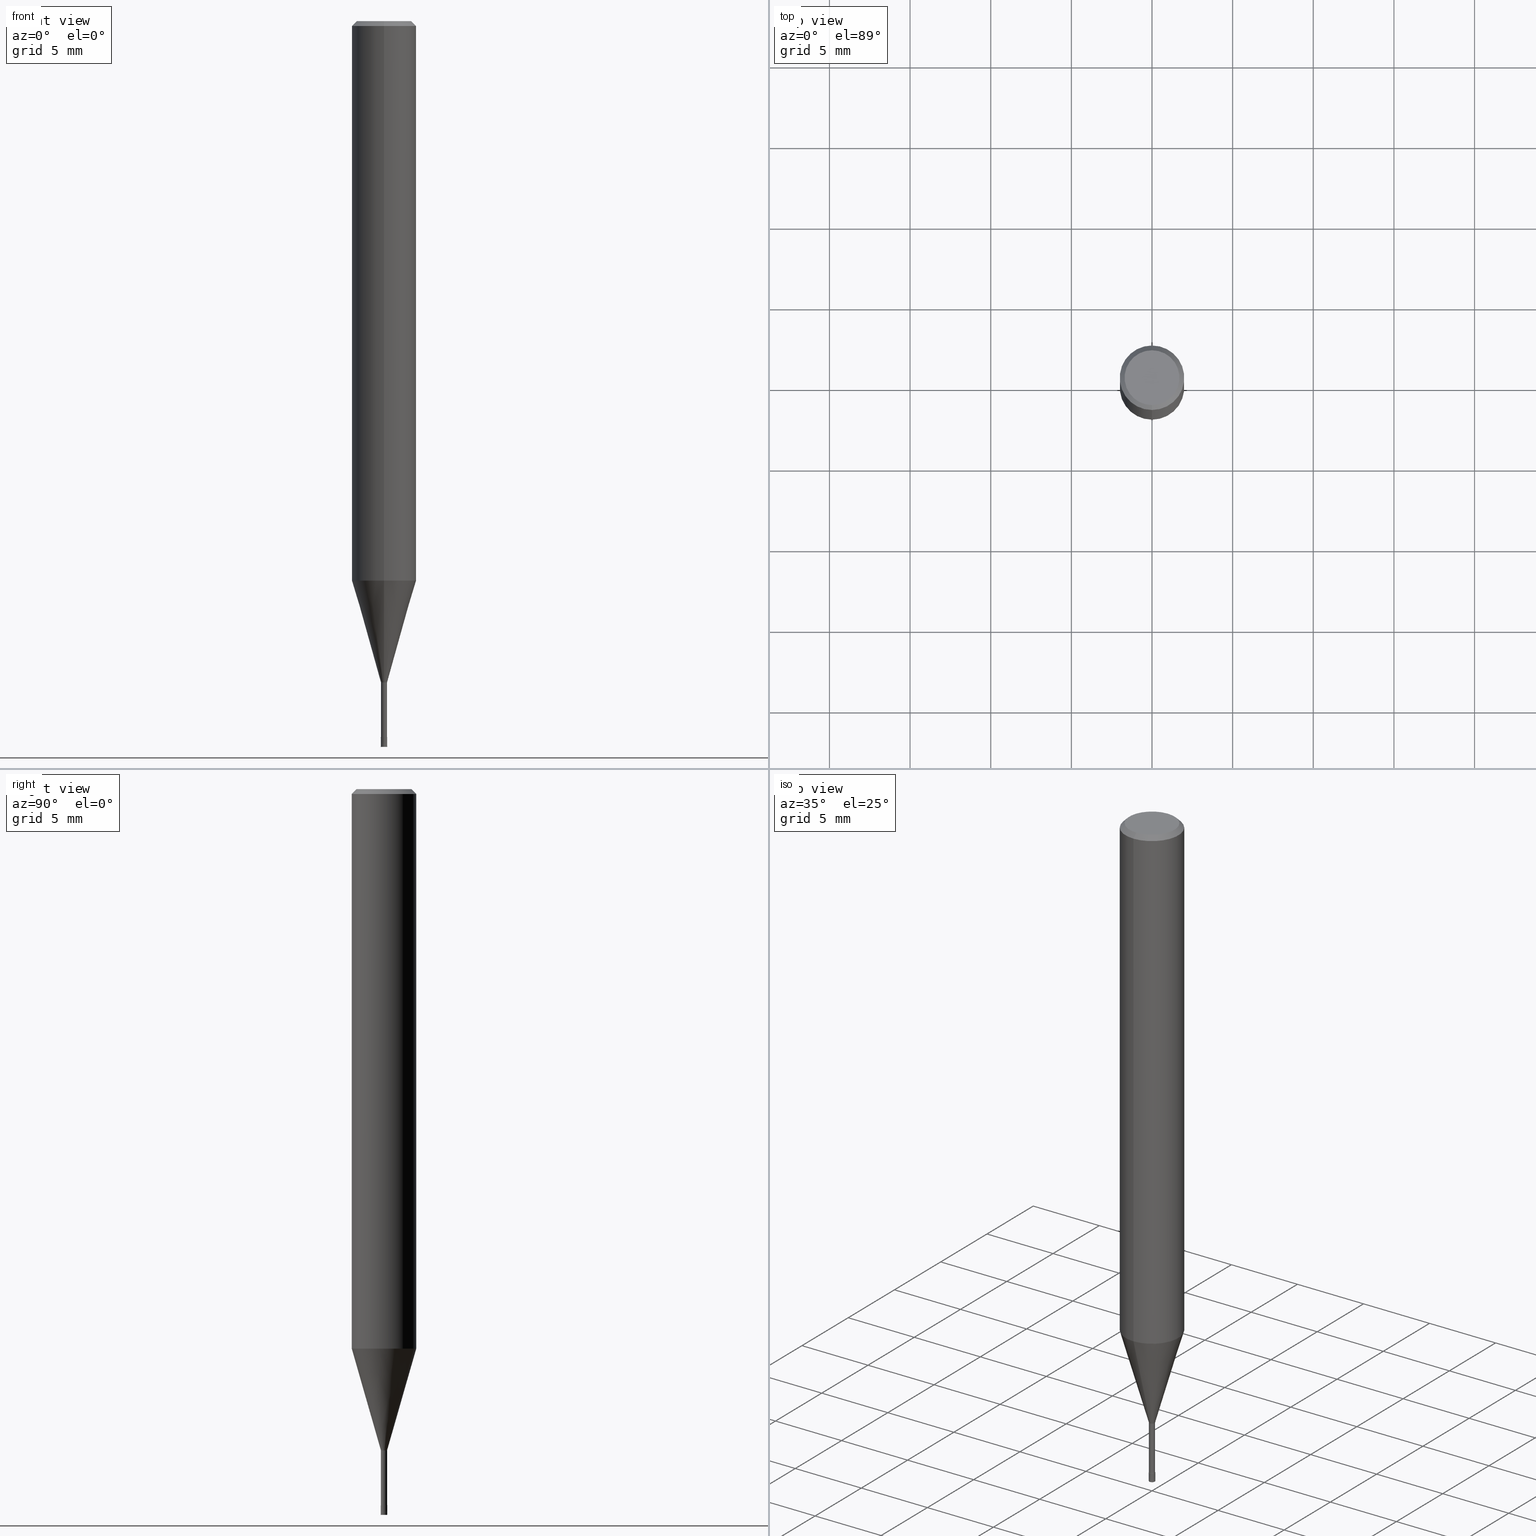
[diagram: canonical four-view strip — front | top / right | iso, engineering-drawing reading convention]
A machine part, canonical four-view strip (front | top / right | iso — engineering-drawing reading convention). The complete STEP part file that produces these views, byte-faithful:
ISO-10303-21;
HEADER;
FILE_DESCRIPTION(('no description'),'unknown implementation level');
FILE_NAME('HLS2004-040-Huellk.stp','  ',('CIMSOURCE GmbH'),('CADClick - KiM GmbH - www.kimweb.de'),'unknown preprocess','ACIS','unknown authorization');
FILE_SCHEMA(('automotive_design'));
ENDSEC;
DATA;
#1=MECHANICAL_DESIGN_GEOMETRIC_PRESENTATION_REPRESENTATION(' ',(#14,#15,#16,#17,#18,#19,#20,#21,#22,#23,#24,#25,#26,#27,#28,#29,#30,#31,#32,#33,#34,#35,#36,#37,#38,#39,#40,#41,#42,#43,#44,#45,#46,#47,#48,#49,#50,#51,#52,#53,#54,#55,#56,#57,#58,#59,#60,#61,#62,#63,#64,#65,#66,#67,#68,#69,#70,#71,#72),#10);
#2=PRODUCT_DEFINITION_CONTEXT('',#73,'design');
#3=APPLICATION_PROTOCOL_DEFINITION('INTERNATIONAL STANDARD','automotive_design',1994,#73);
#4=PRODUCT_CATEGORY_RELATIONSHIP('NONE','NONE',#74,#75);
#5=SHAPE_DEFINITION_REPRESENTATION(#76,#77);
#6=PRODUCT_DEFINITION_CONTEXT('',#78,'design');
#7=APPLICATION_PROTOCOL_DEFINITION('INTERNATIONAL STANDARD','automotive_design',1994,#78);
#8=PRODUCT_CATEGORY_RELATIONSHIP('NONE','NONE',#79,#80);
#9=SHAPE_DEFINITION_REPRESENTATION(#81,#82);
#10= (GEOMETRIC_REPRESENTATION_CONTEXT(3)GLOBAL_UNCERTAINTY_ASSIGNED_CONTEXT((#85))GLOBAL_UNIT_ASSIGNED_CONTEXT((#87,#88,#89))REPRESENTATION_CONTEXT('NONE','WORKSPACE'));
#14=STYLED_ITEM('',(#91),#92);
#15=STYLED_ITEM('',(#93),#94);
#16=STYLED_ITEM('',(#95),#96);
#17=STYLED_ITEM('',(#97),#98);
#18=STYLED_ITEM('',(#99),#100);
#19=STYLED_ITEM('',(#101),#102);
#20=STYLED_ITEM('',(#103),#104);
#21=STYLED_ITEM('',(#105),#106);
#22=STYLED_ITEM('',(#107),#108);
#23=STYLED_ITEM('',(#109),#110);
#24=STYLED_ITEM('',(#111),#112);
#25=STYLED_ITEM('',(#113),#114);
#26=STYLED_ITEM('',(#115),#116);
#27=STYLED_ITEM('',(#117),#118);
#28=STYLED_ITEM('',(#119),#120);
#29=STYLED_ITEM('',(#121),#122);
#30=STYLED_ITEM('',(#123),#124);
#31=STYLED_ITEM('',(#125),#126);
#32=STYLED_ITEM('',(#127),#128);
#33=STYLED_ITEM('',(#129),#130);
#34=STYLED_ITEM('',(#131),#132);
#35=STYLED_ITEM('',(#133),#134);
#36=STYLED_ITEM('',(#135),#136);
#37=STYLED_ITEM('',(#137),#138);
#38=STYLED_ITEM('',(#139),#140);
#39=STYLED_ITEM('',(#141),#142);
#40=STYLED_ITEM('',(#143),#144);
#41=STYLED_ITEM('',(#145),#146);
#42=STYLED_ITEM('',(#147),#148);
#43=STYLED_ITEM('',(#149),#150);
#44=STYLED_ITEM('',(#151),#152);
#45=STYLED_ITEM('',(#153),#154);
#46=STYLED_ITEM('',(#155),#156);
#47=STYLED_ITEM('',(#157),#158);
#48=STYLED_ITEM('',(#159),#160);
#49=STYLED_ITEM('',(#161),#162);
#50=STYLED_ITEM('',(#163),#164);
#51=STYLED_ITEM('',(#165),#166);
#52=STYLED_ITEM('',(#167),#168);
#53=STYLED_ITEM('',(#169),#170);
#54=STYLED_ITEM('',(#171),#172);
#55=STYLED_ITEM('',(#173),#174);
#56=STYLED_ITEM('',(#175),#176);
#57=STYLED_ITEM('',(#177),#178);
#58=STYLED_ITEM('',(#179),#180);
#59=STYLED_ITEM('',(#181),#182);
#60=STYLED_ITEM('',(#183),#184);
#61=STYLED_ITEM('',(#185),#186);
#62=STYLED_ITEM('',(#187),#188);
#63=STYLED_ITEM('',(#189),#190);
#64=STYLED_ITEM('',(#191),#192);
#65=STYLED_ITEM('',(#193),#194);
#66=STYLED_ITEM('',(#195),#196);
#67=STYLED_ITEM('',(#197),#198);
#68=STYLED_ITEM('',(#199),#200);
#69=STYLED_ITEM('',(#201),#202);
#70=STYLED_ITEM('',(#203),#204);
#71=STYLED_ITEM('',(#205),#206);
#72=STYLED_ITEM('',(#207),#208);
#73=APPLICATION_CONTEXT(' ');
#74=PRODUCT_CATEGORY('part','NONE');
#75=PRODUCT_RELATED_PRODUCT_CATEGORY('detail',' ',(#209));
#76=PRODUCT_DEFINITION_SHAPE('NONE','NONE',#210);
#77=ADVANCED_BREP_SHAPE_REPRESENTATION('1',(#102,#211),#10);
#78=APPLICATION_CONTEXT(' ');
#79=PRODUCT_CATEGORY('part','NONE');
#80=PRODUCT_RELATED_PRODUCT_CATEGORY('detail',' ',(#212));
#81=PRODUCT_DEFINITION_SHAPE('NONE','NONE',#213);
#82=ADVANCED_BREP_SHAPE_REPRESENTATION('2',(#94,#214),#10);
#85=UNCERTAINTY_MEASURE_WITH_UNIT(LENGTH_MEASURE(1.0E-006),#87,'','');
#87= (CONVERSION_BASED_UNIT('MILLIMETRE',#217)LENGTH_UNIT()NAMED_UNIT(#220));
#88= (NAMED_UNIT(#222)PLANE_ANGLE_UNIT()SI_UNIT($,.RADIAN.));
#89= (NAMED_UNIT(#222)SOLID_ANGLE_UNIT()SI_UNIT($,.STERADIAN.));
#91=PRESENTATION_STYLE_ASSIGNMENT((#228));
#92=ADVANCED_FACE('',(#229),#230,.T.);
#93=PRESENTATION_STYLE_ASSIGNMENT((#231));
#94=MANIFOLD_SOLID_BREP('2',#232);
#95=PRESENTATION_STYLE_ASSIGNMENT((#233));
#96=VERTEX_POINT('',#234);
#97=PRESENTATION_STYLE_ASSIGNMENT((#235));
#98=VERTEX_POINT('',#236);
#99=PRESENTATION_STYLE_ASSIGNMENT((#237));
#100=EDGE_CURVE('',#98,#128,#238,.T.);
#101=PRESENTATION_STYLE_ASSIGNMENT((#239));
#102=MANIFOLD_SOLID_BREP('1',#240);
#103=PRESENTATION_STYLE_ASSIGNMENT((#241));
#104=EDGE_CURVE('',#192,#188,#242,.T.);
#105=PRESENTATION_STYLE_ASSIGNMENT((#243));
#106=EDGE_CURVE('',#146,#112,#244,.T.);
#107=PRESENTATION_STYLE_ASSIGNMENT((#245));
#108=EDGE_CURVE('',#146,#192,#246,.T.);
#109=PRESENTATION_STYLE_ASSIGNMENT((#247));
#110=ADVANCED_FACE('',(#248),#249,.T.);
#111=PRESENTATION_STYLE_ASSIGNMENT((#250));
#112=VERTEX_POINT('',#251);
#113=PRESENTATION_STYLE_ASSIGNMENT((#252));
#114=EDGE_CURVE('',#188,#112,#253,.T.);
#115=PRESENTATION_STYLE_ASSIGNMENT((#254));
#116=ADVANCED_FACE('',(#255),#256,.T.);
#117=PRESENTATION_STYLE_ASSIGNMENT((#257));
#118=EDGE_CURVE('',#128,#160,#258,.T.);
#119=PRESENTATION_STYLE_ASSIGNMENT((#259));
#120=ADVANCED_FACE('',(#260),#261,.T.);
#121=PRESENTATION_STYLE_ASSIGNMENT((#262));
#122=ADVANCED_FACE('',(#263),#264,.T.);
#123=PRESENTATION_STYLE_ASSIGNMENT((#265));
#124=VERTEX_POINT('',#266);
#125=PRESENTATION_STYLE_ASSIGNMENT((#267));
#126=EDGE_CURVE('',#124,#176,#268,.T.);
#127=PRESENTATION_STYLE_ASSIGNMENT((#269));
#128=VERTEX_POINT('',#270);
#129=PRESENTATION_STYLE_ASSIGNMENT((#271));
#130=ADVANCED_FACE('',(#272),#273,.T.);
#131=PRESENTATION_STYLE_ASSIGNMENT((#274));
#132=EDGE_CURVE('',#160,#202,#275,.T.);
#133=PRESENTATION_STYLE_ASSIGNMENT((#276));
#134=VERTEX_POINT('',#277);
#135=PRESENTATION_STYLE_ASSIGNMENT((#278));
#136=EDGE_CURVE('',#178,#184,#279,.T.);
#137=PRESENTATION_STYLE_ASSIGNMENT((#280));
#138=EDGE_CURVE('',#176,#178,#281,.T.);
#139=PRESENTATION_STYLE_ASSIGNMENT((#282));
#140=EDGE_CURVE('',#112,#146,#283,.T.);
#141=PRESENTATION_STYLE_ASSIGNMENT((#284));
#142=EDGE_CURVE('',#178,#176,#285,.T.);
#143=PRESENTATION_STYLE_ASSIGNMENT((#286));
#144=EDGE_CURVE('',#154,#124,#287,.T.);
#145=PRESENTATION_STYLE_ASSIGNMENT((#288));
#146=VERTEX_POINT('',#289);
#147=PRESENTATION_STYLE_ASSIGNMENT((#290));
#148=EDGE_CURVE('',#184,#96,#291,.T.);
#149=PRESENTATION_STYLE_ASSIGNMENT((#292));
#150=ADVANCED_FACE('',(#293),#294,.T.);
#151=PRESENTATION_STYLE_ASSIGNMENT((#295));
#152=EDGE_CURVE('',#128,#98,#296,.T.);
#153=PRESENTATION_STYLE_ASSIGNMENT((#297));
#154=VERTEX_POINT('',#298);
#155=PRESENTATION_STYLE_ASSIGNMENT((#299));
#156=ADVANCED_FACE('',(#300),#301,.T.);
#157=PRESENTATION_STYLE_ASSIGNMENT((#302));
#158=EDGE_CURVE('',#184,#124,#303,.T.);
#159=PRESENTATION_STYLE_ASSIGNMENT((#304));
#160=VERTEX_POINT('',#305);
#161=PRESENTATION_STYLE_ASSIGNMENT((#306));
#162=EDGE_CURVE('',#98,#196,#307,.T.);
#163=PRESENTATION_STYLE_ASSIGNMENT((#308));
#164=EDGE_CURVE('',#134,#128,#309,.T.);
#165=PRESENTATION_STYLE_ASSIGNMENT((#310));
#166=ADVANCED_FACE('',(#311),#312,.T.);
#167=PRESENTATION_STYLE_ASSIGNMENT((#313));
#168=EDGE_CURVE('',#134,#196,#314,.T.);
#169=PRESENTATION_STYLE_ASSIGNMENT((#315));
#170=ADVANCED_FACE('',(#316),#317,.T.);
#171=PRESENTATION_STYLE_ASSIGNMENT((#318));
#172=EDGE_CURVE('',#202,#98,#319,.T.);
#173=PRESENTATION_STYLE_ASSIGNMENT((#320));
#174=EDGE_CURVE('',#188,#192,#321,.T.);
#175=PRESENTATION_STYLE_ASSIGNMENT((#322));
#176=VERTEX_POINT('',#323);
#177=PRESENTATION_STYLE_ASSIGNMENT((#324));
#178=VERTEX_POINT('',#325);
#179=PRESENTATION_STYLE_ASSIGNMENT((#326));
#180=EDGE_CURVE('',#202,#160,#327,.T.);
#181=PRESENTATION_STYLE_ASSIGNMENT((#328));
#182=EDGE_CURVE('',#124,#184,#329,.T.);
#183=PRESENTATION_STYLE_ASSIGNMENT((#330));
#184=VERTEX_POINT('',#331);
#185=PRESENTATION_STYLE_ASSIGNMENT((#332));
#186=ADVANCED_FACE('',(#333),#334,.T.);
#187=PRESENTATION_STYLE_ASSIGNMENT((#335));
#188=VERTEX_POINT('',#336);
#189=PRESENTATION_STYLE_ASSIGNMENT((#337));
#190=ADVANCED_FACE('',(#338),#339,.T.);
#191=PRESENTATION_STYLE_ASSIGNMENT((#340));
#192=VERTEX_POINT('',#341);
#193=PRESENTATION_STYLE_ASSIGNMENT((#342));
#194=ADVANCED_FACE('',(#343),#344,.T.);
#195=PRESENTATION_STYLE_ASSIGNMENT((#345));
#196=VERTEX_POINT('',#346);
#197=PRESENTATION_STYLE_ASSIGNMENT((#347));
#198=ADVANCED_FACE('',(#348,#349),#350,.T.);
#199=PRESENTATION_STYLE_ASSIGNMENT((#351));
#200=EDGE_CURVE('',#96,#154,#352,.T.);
#201=PRESENTATION_STYLE_ASSIGNMENT((#353));
#202=VERTEX_POINT('',#354);
#203=PRESENTATION_STYLE_ASSIGNMENT((#355));
#204=EDGE_CURVE('',#196,#134,#356,.T.);
#205=PRESENTATION_STYLE_ASSIGNMENT((#357));
#206=EDGE_CURVE('',#154,#96,#358,.T.);
#207=PRESENTATION_STYLE_ASSIGNMENT((#359));
#208=ADVANCED_FACE('',(#360),#361,.T.);
#209=PRODUCT('1','1','PART-1-DESC',(#362));
#210=PRODUCT_DEFINITION('NONE','NONE',#363,#2);
#211=AXIS2_PLACEMENT_3D('',#364,#365,#366);
#212=PRODUCT('2','2','PART-2-DESC',(#367));
#213=PRODUCT_DEFINITION('NONE','NONE',#368,#6);
#214=AXIS2_PLACEMENT_3D('',#369,#370,#371);
#217=LENGTH_MEASURE_WITH_UNIT(LENGTH_MEASURE(1.0),#372);
#220=DIMENSIONAL_EXPONENTS(1.0,0.0,0.0,0.0,0.0,0.0,0.0);
#222=DIMENSIONAL_EXPONENTS(0.0,0.0,0.0,0.0,0.0,0.0,0.0);
#228=SURFACE_STYLE_USAGE(.BOTH.,#373);
#229=FACE_OUTER_BOUND('',#374,.T.);
#230=CONICAL_SURFACE('',#375,1.85,0.785398163397453);
#231=SURFACE_STYLE_USAGE(.BOTH.,#376);
#232=CLOSED_SHELL('',(#170,#120,#116,#110));
#233=POINT_STYLE(' ',#377,POSITIVE_LENGTH_MEASURE(1.0E-006),#378);
#234=CARTESIAN_POINT('',(0.0,0.18995,-44.4));
#235=POINT_STYLE(' ',#379,POSITIVE_LENGTH_MEASURE(1.0E-006),#380);
#236=CARTESIAN_POINT('',(2.44921270764475E-016,-2.0,-0.299999999999997));
#237=CURVE_STYLE('',#381,POSITIVE_LENGTH_MEASURE(1.0E-006),#382);
#238=CIRCLE('',#383,2.0);
#239=SURFACE_STYLE_USAGE(.BOTH.,#384);
#240=CLOSED_SHELL('',(#156,#122,#190,#92,#198,#208,#166,#130,#150,#186,#194));
#241=CURVE_STYLE('',#385,POSITIVE_LENGTH_MEASURE(1.0E-006),#386);
#242=CIRCLE('',#387,0.2);
#243=CURVE_STYLE('',#388,POSITIVE_LENGTH_MEASURE(1.0E-006),#389);
#244=CIRCLE('',#390,0.1999);
#245=CURVE_STYLE('',#391,POSITIVE_LENGTH_MEASURE(1.0E-006),#392);
#246=LINE('',#393,#394);
#247=SURFACE_STYLE_USAGE(.BOTH.,#395);
#248=FACE_OUTER_BOUND('',#396,.T.);
#249=PLANE('',#397);
#250=POINT_STYLE(' ',#398,POSITIVE_LENGTH_MEASURE(1.0E-006),#399);
#251=CARTESIAN_POINT('',(2.44798810129093E-017,-0.1999,-44.4));
#252=CURVE_STYLE('',#400,POSITIVE_LENGTH_MEASURE(1.0E-006),#401);
#253=LINE('',#402,#403);
#254=SURFACE_STYLE_USAGE(.BOTH.,#404);
#255=FACE_OUTER_BOUND('',#405,.T.);
#256=CONICAL_SURFACE('',#406,0.19995,0.000166666665123485);
#257=CURVE_STYLE('',#407,POSITIVE_LENGTH_MEASURE(1.0E-006),#408);
#258=LINE('',#409,#410);
#259=SURFACE_STYLE_USAGE(.BOTH.,#411);
#260=FACE_OUTER_BOUND('',#412,.T.);
#261=PLANE('',#413);
#262=SURFACE_STYLE_USAGE(.BOTH.,#414);
#263=FACE_OUTER_BOUND('',#415,.T.);
#264=CONICAL_SURFACE('',#416,1.09495,0.279261921280279);
#265=POINT_STYLE(' ',#417,POSITIVE_LENGTH_MEASURE(1.0E-006),#418);
#266=CARTESIAN_POINT('',(2.3261397690856E-017,-0.18995,-41.0));
#267=CURVE_STYLE('',#419,POSITIVE_LENGTH_MEASURE(1.0E-006),#420);
#268=LINE('',#421,#422);
#269=POINT_STYLE(' ',#423,POSITIVE_LENGTH_MEASURE(1.0E-006),#424);
#270=CARTESIAN_POINT('',(0.0,2.0,-0.299999999999997));
#271=SURFACE_STYLE_USAGE(.BOTH.,#425);
#272=FACE_OUTER_BOUND('',#426,.T.);
#273=CYLINDRICAL_SURFACE('',#427,2.0);
#274=CURVE_STYLE('',#428,POSITIVE_LENGTH_MEASURE(1.0E-006),#429);
#275=CIRCLE('',#430,2.0);
#276=POINT_STYLE(' ',#431,POSITIVE_LENGTH_MEASURE(1.0E-006),#432);
#277=CARTESIAN_POINT('',(0.0,1.7,0.0));
#278=CURVE_STYLE('',#433,POSITIVE_LENGTH_MEASURE(1.0E-006),#434);
#279=LINE('',#435,#436);
#280=CURVE_STYLE('',#437,POSITIVE_LENGTH_MEASURE(1.0E-006),#438);
#281=CIRCLE('',#439,1.99995);
#282=CURVE_STYLE('',#440,POSITIVE_LENGTH_MEASURE(1.0E-006),#441);
#283=CIRCLE('',#442,0.1999);
#284=CURVE_STYLE('',#443,POSITIVE_LENGTH_MEASURE(1.0E-006),#444);
#285=CIRCLE('',#445,1.99995);
#286=CURVE_STYLE('',#446,POSITIVE_LENGTH_MEASURE(1.0E-006),#447);
#287=LINE('',#448,#449);
#288=POINT_STYLE(' ',#450,POSITIVE_LENGTH_MEASURE(1.0E-006),#451);
#289=CARTESIAN_POINT('',(0.0,0.1999,-44.4));
#290=CURVE_STYLE('',#452,POSITIVE_LENGTH_MEASURE(1.0E-006),#453);
#291=LINE('',#454,#455);
#292=SURFACE_STYLE_USAGE(.BOTH.,#456);
#293=FACE_OUTER_BOUND('',#457,.T.);
#294=CONICAL_SURFACE('',#458,1.09495,0.279261921280279);
#295=CURVE_STYLE('',#459,POSITIVE_LENGTH_MEASURE(1.0E-006),#460);
#296=CIRCLE('',#461,2.0);
#297=POINT_STYLE(' ',#462,POSITIVE_LENGTH_MEASURE(1.0E-006),#463);
#298=CARTESIAN_POINT('',(2.32613976908561E-017,-0.18995,-44.4));
#299=SURFACE_STYLE_USAGE(.BOTH.,#464);
#300=FACE_OUTER_BOUND('',#465,.T.);
#301=CYLINDRICAL_SURFACE('',#466,0.18995);
#302=CURVE_STYLE('',#467,POSITIVE_LENGTH_MEASURE(1.0E-006),#468);
#303=CIRCLE('',#469,0.18995);
#304=POINT_STYLE(' ',#470,POSITIVE_LENGTH_MEASURE(1.0E-006),#471);
#305=CARTESIAN_POINT('',(0.0,2.0,-34.688));
#306=CURVE_STYLE('',#472,POSITIVE_LENGTH_MEASURE(1.0E-006),#473);
#307=LINE('',#474,#475);
#308=CURVE_STYLE('',#476,POSITIVE_LENGTH_MEASURE(1.0E-006),#477);
#309=LINE('',#478,#479);
#310=SURFACE_STYLE_USAGE(.BOTH.,#480);
#311=FACE_OUTER_BOUND('',#481,.T.);
#312=CONICAL_SURFACE('',#482,1.85,0.785398163397453);
#313=CURVE_STYLE('',#483,POSITIVE_LENGTH_MEASURE(1.0E-006),#484);
#314=CIRCLE('',#485,1.7);
#315=SURFACE_STYLE_USAGE(.BOTH.,#486);
#316=FACE_OUTER_BOUND('',#487,.T.);
#317=CONICAL_SURFACE('',#488,0.19995,0.000166666665123485);
#318=CURVE_STYLE('',#489,POSITIVE_LENGTH_MEASURE(1.0E-006),#490);
#319=LINE('',#491,#492);
#320=CURVE_STYLE('',#493,POSITIVE_LENGTH_MEASURE(1.0E-006),#494);
#321=CIRCLE('',#495,0.2);
#322=POINT_STYLE(' ',#496,POSITIVE_LENGTH_MEASURE(1.0E-006),#497);
#323=CARTESIAN_POINT('',(2.44915147732706E-016,-1.99995,-34.688));
#324=POINT_STYLE(' ',#498,POSITIVE_LENGTH_MEASURE(1.0E-006),#499);
#325=CARTESIAN_POINT('',(0.0,1.99995,-34.688));
#326=CURVE_STYLE('',#500,POSITIVE_LENGTH_MEASURE(1.0E-006),#501);
#327=CIRCLE('',#502,2.0);
#328=CURVE_STYLE('',#503,POSITIVE_LENGTH_MEASURE(1.0E-006),#504);
#329=CIRCLE('',#505,0.18995);
#330=POINT_STYLE(' ',#506,POSITIVE_LENGTH_MEASURE(1.0E-006),#507);
#331=CARTESIAN_POINT('',(0.0,0.18995,-41.0));
#332=SURFACE_STYLE_USAGE(.BOTH.,#508);
#333=FACE_OUTER_BOUND('',#509,.T.);
#334=CYLINDRICAL_SURFACE('',#510,0.18995);
#335=POINT_STYLE(' ',#511,POSITIVE_LENGTH_MEASURE(1.0E-006),#512);
#336=CARTESIAN_POINT('',(2.44921270764476E-017,-0.2,-45.0));
#337=SURFACE_STYLE_USAGE(.BOTH.,#513);
#338=FACE_OUTER_BOUND('',#514,.T.);
#339=CYLINDRICAL_SURFACE('',#515,2.0);
#340=POINT_STYLE(' ',#516,POSITIVE_LENGTH_MEASURE(1.0E-006),#517);
#341=CARTESIAN_POINT('',(0.0,0.2,-45.0));
#342=SURFACE_STYLE_USAGE(.BOTH.,#518);
#343=FACE_OUTER_BOUND('',#519,.T.);
#344=PLANE('',#520);
#345=POINT_STYLE(' ',#521,POSITIVE_LENGTH_MEASURE(1.0E-006),#522);
#346=CARTESIAN_POINT('',(2.08183080149804E-016,-1.7,0.0));
#347=SURFACE_STYLE_USAGE(.BOTH.,#523);
#348=FACE_OUTER_BOUND('',#524,.T.);
#349=FACE_BOUND('',#525,.T.);
#350=PLANE('',#526);
#351=CURVE_STYLE('',#527,POSITIVE_LENGTH_MEASURE(1.0E-006),#528);
#352=CIRCLE('',#529,0.18995);
#353=POINT_STYLE(' ',#530,POSITIVE_LENGTH_MEASURE(1.0E-006),#531);
#354=CARTESIAN_POINT('',(2.44921270764475E-016,-2.0,-34.688));
#355=CURVE_STYLE('',#532,POSITIVE_LENGTH_MEASURE(1.0E-006),#533);
#356=CIRCLE('',#534,1.7);
#357=CURVE_STYLE('',#535,POSITIVE_LENGTH_MEASURE(1.0E-006),#536);
#358=CIRCLE('',#537,0.18995);
#359=SURFACE_STYLE_USAGE(.BOTH.,#538);
#360=FACE_OUTER_BOUND('',#539,.T.);
#361=PLANE('',#540);
#362=PRODUCT_CONTEXT('',#73,'mechanical');
#363=PRODUCT_DEFINITION_FORMATION_WITH_SPECIFIED_SOURCE(' ','NONE',#209,.NOT_KNOWN.);
#364=CARTESIAN_POINT('',(0.0,0.0,0.0));
#365=DIRECTION('',(0.0,0.0,1.0));
#366=DIRECTION('',(1.0,0.0,0.0));
#367=PRODUCT_CONTEXT('',#78,'mechanical');
#368=PRODUCT_DEFINITION_FORMATION_WITH_SPECIFIED_SOURCE(' ','NONE',#212,.NOT_KNOWN.);
#369=CARTESIAN_POINT('',(0.0,0.0,0.0));
#370=DIRECTION('',(0.0,0.0,1.0));
#371=DIRECTION('',(1.0,0.0,0.0));
#372= (NAMED_UNIT(#220)LENGTH_UNIT()SI_UNIT(.MILLI.,.METRE.));
#373=SURFACE_SIDE_STYLE('',(#542));
#374=EDGE_LOOP('',(#543,#544,#545,#546));
#375=AXIS2_PLACEMENT_3D('',#547,#548,#549);
#376=SURFACE_SIDE_STYLE('',(#550));
#377=PRE_DEFINED_MARKER('');
#378=COLOUR_RGB('',0.498039215803146,0.498039215803146,0.498039215803146);
#379=PRE_DEFINED_MARKER('');
#380=COLOUR_RGB('',0.498039215803146,0.498039215803146,0.498039215803146);
#381=DRAUGHTING_PRE_DEFINED_CURVE_FONT('continuous');
#382=COLOUR_RGB('',0.498039215803146,0.498039215803146,0.498039215803146);
#383=AXIS2_PLACEMENT_3D('',#551,#552,#553);
#384=SURFACE_SIDE_STYLE('',(#554));
#385=DRAUGHTING_PRE_DEFINED_CURVE_FONT('continuous');
#386=COLOUR_RGB('',0.800000011920929,0.800000011920929,0.800000011920929);
#387=AXIS2_PLACEMENT_3D('',#555,#556,#557);
#388=DRAUGHTING_PRE_DEFINED_CURVE_FONT('continuous');
#389=COLOUR_RGB('',0.800000011920929,0.800000011920929,0.800000011920929);
#390=AXIS2_PLACEMENT_3D('',#558,#559,#560);
#391=DRAUGHTING_PRE_DEFINED_CURVE_FONT('continuous');
#392=COLOUR_RGB('',0.800000011920929,0.800000011920929,0.800000011920929);
#393=CARTESIAN_POINT('',(-2.44860040446784E-017,0.19995,-44.7));
#394=VECTOR('',#561,1.0);
#395=SURFACE_SIDE_STYLE('',(#562));
#396=EDGE_LOOP('',(#563,#564));
#397=AXIS2_PLACEMENT_3D('',#565,#566,#567);
#398=PRE_DEFINED_MARKER('');
#399=COLOUR_RGB('',0.800000011920929,0.800000011920929,0.800000011920929);
#400=DRAUGHTING_PRE_DEFINED_CURVE_FONT('continuous');
#401=COLOUR_RGB('',0.800000011920929,0.800000011920929,0.800000011920929);
#402=CARTESIAN_POINT('',(2.44860040446784E-017,-0.19995,-44.7));
#403=VECTOR('',#568,1.0);
#404=SURFACE_SIDE_STYLE('',(#569));
#405=EDGE_LOOP('',(#570,#571,#572,#573));
#406=AXIS2_PLACEMENT_3D('',#574,#575,#576);
#407=DRAUGHTING_PRE_DEFINED_CURVE_FONT('continuous');
#408=COLOUR_RGB('',0.498039215803146,0.498039215803146,0.498039215803146);
#409=CARTESIAN_POINT('',(-2.44921270764475E-016,2.0,-17.494));
#410=VECTOR('',#577,1.0);
#411=SURFACE_SIDE_STYLE('',(#578));
#412=EDGE_LOOP('',(#579,#580));
#413=AXIS2_PLACEMENT_3D('',#581,#582,#583);
#414=SURFACE_SIDE_STYLE('',(#584));
#415=EDGE_LOOP('',(#585,#586,#587,#588));
#416=AXIS2_PLACEMENT_3D('',#589,#590,#591);
#417=PRE_DEFINED_MARKER('');
#418=COLOUR_RGB('',0.498039215803146,0.498039215803146,0.498039215803146);
#419=DRAUGHTING_PRE_DEFINED_CURVE_FONT('continuous');
#420=COLOUR_RGB('',0.498039215803146,0.498039215803146,0.498039215803146);
#421=CARTESIAN_POINT('',(1.34088272711781E-016,-1.09495,-37.844));
#422=VECTOR('',#592,1.0);
#423=PRE_DEFINED_MARKER('');
#424=COLOUR_RGB('',0.498039215803146,0.498039215803146,0.498039215803146);
#425=SURFACE_SIDE_STYLE('',(#593));
#426=EDGE_LOOP('',(#594,#595,#596,#597));
#427=AXIS2_PLACEMENT_3D('',#598,#599,#600);
#428=DRAUGHTING_PRE_DEFINED_CURVE_FONT('continuous');
#429=COLOUR_RGB('',0.498039215803146,0.498039215803146,0.498039215803146);
#430=AXIS2_PLACEMENT_3D('',#601,#602,#603);
#431=PRE_DEFINED_MARKER('');
#432=COLOUR_RGB('',0.498039215803146,0.498039215803146,0.498039215803146);
#433=DRAUGHTING_PRE_DEFINED_CURVE_FONT('continuous');
#434=COLOUR_RGB('',0.498039215803146,0.498039215803146,0.498039215803146);
#435=CARTESIAN_POINT('',(-1.34088272711781E-016,1.09495,-37.844));
#436=VECTOR('',#604,1.0);
#437=DRAUGHTING_PRE_DEFINED_CURVE_FONT('continuous');
#438=COLOUR_RGB('',0.498039215803146,0.498039215803146,0.498039215803146);
#439=AXIS2_PLACEMENT_3D('',#605,#606,#607);
#440=DRAUGHTING_PRE_DEFINED_CURVE_FONT('continuous');
#441=COLOUR_RGB('',0.800000011920929,0.800000011920929,0.800000011920929);
#442=AXIS2_PLACEMENT_3D('',#608,#609,#610);
#443=DRAUGHTING_PRE_DEFINED_CURVE_FONT('continuous');
#444=COLOUR_RGB('',0.498039215803146,0.498039215803146,0.498039215803146);
#445=AXIS2_PLACEMENT_3D('',#611,#612,#613);
#446=DRAUGHTING_PRE_DEFINED_CURVE_FONT('continuous');
#447=COLOUR_RGB('',0.498039215803146,0.498039215803146,0.498039215803146);
#448=CARTESIAN_POINT('',(2.32613976908561E-017,-0.18995,-42.7));
#449=VECTOR('',#614,1.0);
#450=PRE_DEFINED_MARKER('');
#451=COLOUR_RGB('',0.800000011920929,0.800000011920929,0.800000011920929);
#452=DRAUGHTING_PRE_DEFINED_CURVE_FONT('continuous');
#453=COLOUR_RGB('',0.498039215803146,0.498039215803146,0.498039215803146);
#454=CARTESIAN_POINT('',(-2.32613976908561E-017,0.18995,-42.7));
#455=VECTOR('',#615,1.0);
#456=SURFACE_SIDE_STYLE('',(#616));
#457=EDGE_LOOP('',(#617,#618,#619,#620));
#458=AXIS2_PLACEMENT_3D('',#621,#622,#623);
#459=DRAUGHTING_PRE_DEFINED_CURVE_FONT('continuous');
#460=COLOUR_RGB('',0.498039215803146,0.498039215803146,0.498039215803146);
#461=AXIS2_PLACEMENT_3D('',#624,#625,#626);
#462=PRE_DEFINED_MARKER('');
#463=COLOUR_RGB('',0.498039215803146,0.498039215803146,0.498039215803146);
#464=SURFACE_SIDE_STYLE('',(#627));
#465=EDGE_LOOP('',(#628,#629,#630,#631));
#466=AXIS2_PLACEMENT_3D('',#632,#633,#634);
#467=DRAUGHTING_PRE_DEFINED_CURVE_FONT('continuous');
#468=COLOUR_RGB('',0.498039215803146,0.498039215803146,0.498039215803146);
#469=AXIS2_PLACEMENT_3D('',#635,#636,#637);
#470=PRE_DEFINED_MARKER('');
#471=COLOUR_RGB('',0.498039215803146,0.498039215803146,0.498039215803146);
#472=DRAUGHTING_PRE_DEFINED_CURVE_FONT('continuous');
#473=COLOUR_RGB('',0.498039215803146,0.498039215803146,0.498039215803146);
#474=CARTESIAN_POINT('',(2.2655217545714E-016,-1.85,-0.149999999999999));
#475=VECTOR('',#638,1.0);
#476=DRAUGHTING_PRE_DEFINED_CURVE_FONT('continuous');
#477=COLOUR_RGB('',0.498039215803146,0.498039215803146,0.498039215803146);
#478=CARTESIAN_POINT('',(-2.2655217545714E-016,1.85,-0.149999999999999));
#479=VECTOR('',#639,1.0);
#480=SURFACE_SIDE_STYLE('',(#640));
#481=EDGE_LOOP('',(#641,#642,#643,#644));
#482=AXIS2_PLACEMENT_3D('',#645,#646,#647);
#483=DRAUGHTING_PRE_DEFINED_CURVE_FONT('continuous');
#484=COLOUR_RGB('',0.498039215803146,0.498039215803146,0.498039215803146);
#485=AXIS2_PLACEMENT_3D('',#648,#649,#650);
#486=SURFACE_SIDE_STYLE('',(#651));
#487=EDGE_LOOP('',(#652,#653,#654,#655));
#488=AXIS2_PLACEMENT_3D('',#656,#657,#658);
#489=DRAUGHTING_PRE_DEFINED_CURVE_FONT('continuous');
#490=COLOUR_RGB('',0.498039215803146,0.498039215803146,0.498039215803146);
#491=CARTESIAN_POINT('',(2.44921270764475E-016,-2.0,-17.494));
#492=VECTOR('',#659,1.0);
#493=DRAUGHTING_PRE_DEFINED_CURVE_FONT('continuous');
#494=COLOUR_RGB('',0.800000011920929,0.800000011920929,0.800000011920929);
#495=AXIS2_PLACEMENT_3D('',#660,#661,#662);
#496=PRE_DEFINED_MARKER('');
#497=COLOUR_RGB('',0.498039215803146,0.498039215803146,0.498039215803146);
#498=PRE_DEFINED_MARKER('');
#499=COLOUR_RGB('',0.498039215803146,0.498039215803146,0.498039215803146);
#500=DRAUGHTING_PRE_DEFINED_CURVE_FONT('continuous');
#501=COLOUR_RGB('',0.498039215803146,0.498039215803146,0.498039215803146);
#502=AXIS2_PLACEMENT_3D('',#663,#664,#665);
#503=DRAUGHTING_PRE_DEFINED_CURVE_FONT('continuous');
#504=COLOUR_RGB('',0.498039215803146,0.498039215803146,0.498039215803146);
#505=AXIS2_PLACEMENT_3D('',#666,#667,#668);
#506=PRE_DEFINED_MARKER('');
#507=COLOUR_RGB('',0.498039215803146,0.498039215803146,0.498039215803146);
#508=SURFACE_SIDE_STYLE('',(#669));
#509=EDGE_LOOP('',(#670,#671,#672,#673));
#510=AXIS2_PLACEMENT_3D('',#674,#675,#676);
#511=PRE_DEFINED_MARKER('');
#512=COLOUR_RGB('',0.800000011920929,0.800000011920929,0.800000011920929);
#513=SURFACE_SIDE_STYLE('',(#677));
#514=EDGE_LOOP('',(#678,#679,#680,#681));
#515=AXIS2_PLACEMENT_3D('',#682,#683,#684);
#516=PRE_DEFINED_MARKER('');
#517=COLOUR_RGB('',0.800000011920929,0.800000011920929,0.800000011920929);
#518=SURFACE_SIDE_STYLE('',(#685));
#519=EDGE_LOOP('',(#686,#687));
#520=AXIS2_PLACEMENT_3D('',#688,#689,#690);
#521=PRE_DEFINED_MARKER('');
#522=COLOUR_RGB('',0.498039215803146,0.498039215803146,0.498039215803146);
#523=SURFACE_SIDE_STYLE('',(#691));
#524=EDGE_LOOP('',(#692,#693));
#525=EDGE_LOOP('',(#694,#695));
#526=AXIS2_PLACEMENT_3D('',#696,#697,#698);
#527=DRAUGHTING_PRE_DEFINED_CURVE_FONT('continuous');
#528=COLOUR_RGB('',0.498039215803146,0.498039215803146,0.498039215803146);
#529=AXIS2_PLACEMENT_3D('',#699,#700,#701);
#530=PRE_DEFINED_MARKER('');
#531=COLOUR_RGB('',0.498039215803146,0.498039215803146,0.498039215803146);
#532=DRAUGHTING_PRE_DEFINED_CURVE_FONT('continuous');
#533=COLOUR_RGB('',0.498039215803146,0.498039215803146,0.498039215803146);
#534=AXIS2_PLACEMENT_3D('',#702,#703,#704);
#535=DRAUGHTING_PRE_DEFINED_CURVE_FONT('continuous');
#536=COLOUR_RGB('',0.498039215803146,0.498039215803146,0.498039215803146);
#537=AXIS2_PLACEMENT_3D('',#705,#706,#707);
#538=SURFACE_SIDE_STYLE('',(#708));
#539=EDGE_LOOP('',(#709,#710));
#540=AXIS2_PLACEMENT_3D('',#711,#712,#713);
#542=SURFACE_STYLE_FILL_AREA(#714);
#543=ORIENTED_EDGE('',*,*,#164,.F.);
#544=ORIENTED_EDGE('',*,*,#168,.T.);
#545=ORIENTED_EDGE('',*,*,#162,.F.);
#546=ORIENTED_EDGE('',*,*,#152,.F.);
#547=CARTESIAN_POINT('',(0.0,0.0,-0.149999999999999));
#548=DIRECTION('',(0.0,-0.0,-1.0));
#549=DIRECTION('',(0.0,1.0,0.0));
#550=SURFACE_STYLE_FILL_AREA(#715);
#551=CARTESIAN_POINT('',(0.0,0.0,-0.299999999999997));
#552=DIRECTION('',(0.0,0.0,-1.0));
#553=DIRECTION('',(0.0,1.0,0.0));
#554=SURFACE_STYLE_FILL_AREA(#716);
#555=CARTESIAN_POINT('',(0.0,0.0,-45.0));
#556=DIRECTION('',(0.0,0.0,-1.0));
#557=DIRECTION('',(0.0,1.0,0.0));
#558=CARTESIAN_POINT('',(0.0,0.0,-44.4));
#559=DIRECTION('',(0.0,0.0,-1.0));
#560=DIRECTION('',(0.0,1.0,0.0));
#561=DIRECTION('',(-2.04101056135694E-020,0.00016666666435188,-0.999999986111112));
#562=SURFACE_STYLE_FILL_AREA(#717);
#563=ORIENTED_EDGE('',*,*,#104,.T.);
#564=ORIENTED_EDGE('',*,*,#174,.T.);
#565=CARTESIAN_POINT('',(0.0,0.0975,-45.0));
#566=DIRECTION('',(0.0,0.0,-1.0));
#567=DIRECTION('',(0.0,1.0,0.0));
#568=DIRECTION('',(-2.04101056135694E-020,0.00016666666435188,0.999999986111112));
#569=SURFACE_STYLE_FILL_AREA(#718);
#570=ORIENTED_EDGE('',*,*,#108,.T.);
#571=ORIENTED_EDGE('',*,*,#174,.F.);
#572=ORIENTED_EDGE('',*,*,#114,.T.);
#573=ORIENTED_EDGE('',*,*,#140,.T.);
#574=CARTESIAN_POINT('',(0.0,0.0,-44.7));
#575=DIRECTION('',(0.0,-0.0,-1.0));
#576=DIRECTION('',(0.0,1.0,0.0));
#577=DIRECTION('',(0.0,0.0,-1.0));
#578=SURFACE_STYLE_FILL_AREA(#719);
#579=ORIENTED_EDGE('',*,*,#106,.F.);
#580=ORIENTED_EDGE('',*,*,#140,.F.);
#581=CARTESIAN_POINT('',(0.0,0.09995,-44.4));
#582=DIRECTION('',(-0.0,0.0,1.0));
#583=DIRECTION('',(0.0,-1.0,0.0));
#584=SURFACE_STYLE_FILL_AREA(#720);
#585=ORIENTED_EDGE('',*,*,#136,.F.);
#586=ORIENTED_EDGE('',*,*,#142,.T.);
#587=ORIENTED_EDGE('',*,*,#126,.F.);
#588=ORIENTED_EDGE('',*,*,#158,.F.);
#589=CARTESIAN_POINT('',(0.0,0.0,-37.844));
#590=DIRECTION('',(-0.0,-0.0,1.0));
#591=DIRECTION('',(0.0,1.0,0.0));
#592=DIRECTION('',(3.37558135426109E-017,-0.275646238787252,0.961259148743169));
#593=SURFACE_STYLE_FILL_AREA(#721);
#594=ORIENTED_EDGE('',*,*,#118,.T.);
#595=ORIENTED_EDGE('',*,*,#180,.F.);
#596=ORIENTED_EDGE('',*,*,#172,.T.);
#597=ORIENTED_EDGE('',*,*,#100,.T.);
#598=CARTESIAN_POINT('',(0.0,0.0,-17.494));
#599=DIRECTION('',(-0.0,-0.0,1.0));
#600=DIRECTION('',(0.0,1.0,0.0));
#601=CARTESIAN_POINT('',(0.0,0.0,-34.688));
#602=DIRECTION('',(0.0,0.0,-1.0));
#603=DIRECTION('',(0.0,1.0,0.0));
#604=DIRECTION('',(3.37558135426109E-017,-0.275646238787252,-0.961259148743169));
#605=CARTESIAN_POINT('',(0.0,0.0,-34.688));
#606=DIRECTION('',(0.0,0.0,-1.0));
#607=DIRECTION('',(0.0,1.0,0.0));
#608=CARTESIAN_POINT('',(0.0,0.0,-44.4));
#609=DIRECTION('',(0.0,0.0,-1.0));
#610=DIRECTION('',(0.0,1.0,0.0));
#611=CARTESIAN_POINT('',(0.0,0.0,-34.688));
#612=DIRECTION('',(0.0,0.0,-1.0));
#613=DIRECTION('',(0.0,1.0,0.0));
#614=DIRECTION('',(-0.0,-0.0,1.0));
#615=DIRECTION('',(0.0,0.0,-1.0));
#616=SURFACE_STYLE_FILL_AREA(#722);
#617=ORIENTED_EDGE('',*,*,#136,.T.);
#618=ORIENTED_EDGE('',*,*,#182,.F.);
#619=ORIENTED_EDGE('',*,*,#126,.T.);
#620=ORIENTED_EDGE('',*,*,#138,.T.);
#621=CARTESIAN_POINT('',(0.0,0.0,-37.844));
#622=DIRECTION('',(-0.0,-0.0,1.0));
#623=DIRECTION('',(0.0,1.0,0.0));
#624=CARTESIAN_POINT('',(0.0,0.0,-0.299999999999997));
#625=DIRECTION('',(0.0,0.0,-1.0));
#626=DIRECTION('',(0.0,1.0,0.0));
#627=SURFACE_STYLE_FILL_AREA(#723);
#628=ORIENTED_EDGE('',*,*,#148,.F.);
#629=ORIENTED_EDGE('',*,*,#158,.T.);
#630=ORIENTED_EDGE('',*,*,#144,.F.);
#631=ORIENTED_EDGE('',*,*,#200,.F.);
#632=CARTESIAN_POINT('',(0.0,0.0,-42.7));
#633=DIRECTION('',(-0.0,-0.0,1.0));
#634=DIRECTION('',(0.0,1.0,0.0));
#635=CARTESIAN_POINT('',(0.0,0.0,-41.0));
#636=DIRECTION('',(0.0,0.0,-1.0));
#637=DIRECTION('',(0.0,1.0,0.0));
#638=DIRECTION('',(-8.6592745707194E-017,0.707106781186551,0.707106781186544));
#639=DIRECTION('',(-8.6592745707194E-017,0.707106781186551,-0.707106781186544));
#640=SURFACE_STYLE_FILL_AREA(#724);
#641=ORIENTED_EDGE('',*,*,#164,.T.);
#642=ORIENTED_EDGE('',*,*,#100,.F.);
#643=ORIENTED_EDGE('',*,*,#162,.T.);
#644=ORIENTED_EDGE('',*,*,#204,.T.);
#645=CARTESIAN_POINT('',(0.0,0.0,-0.149999999999999));
#646=DIRECTION('',(0.0,-0.0,-1.0));
#647=DIRECTION('',(0.0,1.0,0.0));
#648=CARTESIAN_POINT('',(0.0,0.0,0.0));
#649=DIRECTION('',(0.0,0.0,-1.0));
#650=DIRECTION('',(0.0,1.0,0.0));
#651=SURFACE_STYLE_FILL_AREA(#725);
#652=ORIENTED_EDGE('',*,*,#108,.F.);
#653=ORIENTED_EDGE('',*,*,#106,.T.);
#654=ORIENTED_EDGE('',*,*,#114,.F.);
#655=ORIENTED_EDGE('',*,*,#104,.F.);
#656=CARTESIAN_POINT('',(0.0,0.0,-44.7));
#657=DIRECTION('',(0.0,-0.0,-1.0));
#658=DIRECTION('',(0.0,1.0,0.0));
#659=DIRECTION('',(-0.0,-0.0,1.0));
#660=CARTESIAN_POINT('',(0.0,0.0,-45.0));
#661=DIRECTION('',(0.0,0.0,-1.0));
#662=DIRECTION('',(0.0,1.0,0.0));
#663=CARTESIAN_POINT('',(0.0,0.0,-34.688));
#664=DIRECTION('',(0.0,0.0,-1.0));
#665=DIRECTION('',(0.0,1.0,0.0));
#666=CARTESIAN_POINT('',(0.0,0.0,-41.0));
#667=DIRECTION('',(0.0,0.0,-1.0));
#668=DIRECTION('',(0.0,1.0,0.0));
#669=SURFACE_STYLE_FILL_AREA(#726);
#670=ORIENTED_EDGE('',*,*,#148,.T.);
#671=ORIENTED_EDGE('',*,*,#206,.F.);
#672=ORIENTED_EDGE('',*,*,#144,.T.);
#673=ORIENTED_EDGE('',*,*,#182,.T.);
#674=CARTESIAN_POINT('',(0.0,0.0,-42.7));
#675=DIRECTION('',(-0.0,-0.0,1.0));
#676=DIRECTION('',(0.0,1.0,0.0));
#677=SURFACE_STYLE_FILL_AREA(#727);
#678=ORIENTED_EDGE('',*,*,#118,.F.);
#679=ORIENTED_EDGE('',*,*,#152,.T.);
#680=ORIENTED_EDGE('',*,*,#172,.F.);
#681=ORIENTED_EDGE('',*,*,#132,.F.);
#682=CARTESIAN_POINT('',(0.0,0.0,-17.494));
#683=DIRECTION('',(-0.0,-0.0,1.0));
#684=DIRECTION('',(0.0,1.0,0.0));
#685=SURFACE_STYLE_FILL_AREA(#728);
#686=ORIENTED_EDGE('',*,*,#200,.T.);
#687=ORIENTED_EDGE('',*,*,#206,.T.);
#688=CARTESIAN_POINT('',(0.0,0.094975,-44.4));
#689=DIRECTION('',(0.0,0.0,-1.0));
#690=DIRECTION('',(0.0,1.0,0.0));
#691=SURFACE_STYLE_FILL_AREA(#729);
#692=ORIENTED_EDGE('',*,*,#132,.T.);
#693=ORIENTED_EDGE('',*,*,#180,.T.);
#694=ORIENTED_EDGE('',*,*,#142,.F.);
#695=ORIENTED_EDGE('',*,*,#138,.F.);
#696=CARTESIAN_POINT('',(0.0,1.0,-34.688));
#697=DIRECTION('',(0.0,0.0,-1.0));
#698=DIRECTION('',(0.0,1.0,0.0));
#699=CARTESIAN_POINT('',(0.0,0.0,-44.4));
#700=DIRECTION('',(0.0,0.0,-1.0));
#701=DIRECTION('',(0.0,1.0,0.0));
#702=CARTESIAN_POINT('',(0.0,0.0,0.0));
#703=DIRECTION('',(0.0,0.0,-1.0));
#704=DIRECTION('',(0.0,1.0,0.0));
#705=CARTESIAN_POINT('',(0.0,0.0,-44.4));
#706=DIRECTION('',(0.0,0.0,-1.0));
#707=DIRECTION('',(0.0,1.0,0.0));
#708=SURFACE_STYLE_FILL_AREA(#730);
#709=ORIENTED_EDGE('',*,*,#168,.F.);
#710=ORIENTED_EDGE('',*,*,#204,.F.);
#711=CARTESIAN_POINT('',(0.0,0.85,0.0));
#712=DIRECTION('',(-0.0,0.0,1.0));
#713=DIRECTION('',(0.0,-1.0,0.0));
#714=FILL_AREA_STYLE('',(#731));
#715=FILL_AREA_STYLE('',(#732));
#716=FILL_AREA_STYLE('',(#733));
#717=FILL_AREA_STYLE('',(#734));
#718=FILL_AREA_STYLE('',(#735));
#719=FILL_AREA_STYLE('',(#736));
#720=FILL_AREA_STYLE('',(#737));
#721=FILL_AREA_STYLE('',(#738));
#722=FILL_AREA_STYLE('',(#739));
#723=FILL_AREA_STYLE('',(#740));
#724=FILL_AREA_STYLE('',(#741));
#725=FILL_AREA_STYLE('',(#742));
#726=FILL_AREA_STYLE('',(#743));
#727=FILL_AREA_STYLE('',(#744));
#728=FILL_AREA_STYLE('',(#745));
#729=FILL_AREA_STYLE('',(#746));
#730=FILL_AREA_STYLE('',(#747));
#731=FILL_AREA_STYLE_COLOUR('',#748);
#732=FILL_AREA_STYLE_COLOUR('',#749);
#733=FILL_AREA_STYLE_COLOUR('',#750);
#734=FILL_AREA_STYLE_COLOUR('',#751);
#735=FILL_AREA_STYLE_COLOUR('',#752);
#736=FILL_AREA_STYLE_COLOUR('',#753);
#737=FILL_AREA_STYLE_COLOUR('',#754);
#738=FILL_AREA_STYLE_COLOUR('',#755);
#739=FILL_AREA_STYLE_COLOUR('',#756);
#740=FILL_AREA_STYLE_COLOUR('',#757);
#741=FILL_AREA_STYLE_COLOUR('',#758);
#742=FILL_AREA_STYLE_COLOUR('',#759);
#743=FILL_AREA_STYLE_COLOUR('',#760);
#744=FILL_AREA_STYLE_COLOUR('',#761);
#745=FILL_AREA_STYLE_COLOUR('',#762);
#746=FILL_AREA_STYLE_COLOUR('',#763);
#747=FILL_AREA_STYLE_COLOUR('',#764);
#748=COLOUR_RGB('',0.498039215803146,0.498039215803146,0.498039215803146);
#749=COLOUR_RGB('',0.800000011920929,0.800000011920929,0.800000011920929);
#750=COLOUR_RGB('',0.498039215803146,0.498039215803146,0.498039215803146);
#751=COLOUR_RGB('',0.800000011920929,0.800000011920929,0.800000011920929);
#752=COLOUR_RGB('',0.800000011920929,0.800000011920929,0.800000011920929);
#753=COLOUR_RGB('',0.800000011920929,0.800000011920929,0.800000011920929);
#754=COLOUR_RGB('',0.498039215803146,0.498039215803146,0.498039215803146);
#755=COLOUR_RGB('',0.498039215803146,0.498039215803146,0.498039215803146);
#756=COLOUR_RGB('',0.498039215803146,0.498039215803146,0.498039215803146);
#757=COLOUR_RGB('',0.498039215803146,0.498039215803146,0.498039215803146);
#758=COLOUR_RGB('',0.498039215803146,0.498039215803146,0.498039215803146);
#759=COLOUR_RGB('',0.800000011920929,0.800000011920929,0.800000011920929);
#760=COLOUR_RGB('',0.498039215803146,0.498039215803146,0.498039215803146);
#761=COLOUR_RGB('',0.498039215803146,0.498039215803146,0.498039215803146);
#762=COLOUR_RGB('',0.498039215803146,0.498039215803146,0.498039215803146);
#763=COLOUR_RGB('',0.498039215803146,0.498039215803146,0.498039215803146);
#764=COLOUR_RGB('',0.498039215803146,0.498039215803146,0.498039215803146);
#765=AXIS2_PLACEMENT_3D('PCS',#766,#767,#768);
#766=CARTESIAN_POINT('',(0.0,0.0,0.0));
#767=DIRECTION('',(0.0,0.0,1.0));
#768=DIRECTION('',(1.0,0.0,0.0));
#769=AXIS2_PLACEMENT_3D('CIP',#770,#771,#772);
#770=CARTESIAN_POINT('',(0.0,0.0,-45.0));
#771=DIRECTION('',(0.0,0.0,1.0));
#772=DIRECTION('',(1.0,0.0,0.0));
#773=AXIS2_PLACEMENT_3D('CRP',#774,#775,#776);
#774=CARTESIAN_POINT('',(-0.2,0.0,-45.0));
#775=DIRECTION('',(0.0,0.0,1.0));
#776=DIRECTION('',(1.0,0.0,0.0));
#777=AXIS2_PLACEMENT_3D('MCS',#778,#779,#780);
#778=CARTESIAN_POINT('',(0.0,0.0,-34.688));
#779=DIRECTION('',(0.0,0.0,1.0));
#780=DIRECTION('',(1.0,0.0,0.0));
#781=CONSTRUCTIVE_GEOMETRY_REPRESENTATION_RELATIONSHIP('coordinate systems',$,#77,#782);
#782=CONSTRUCTIVE_GEOMETRY_REPRESENTATION('coordinate systems',(#765,#769,#773,#777),#10);
ENDSEC;
END-ISO-10303-21;
